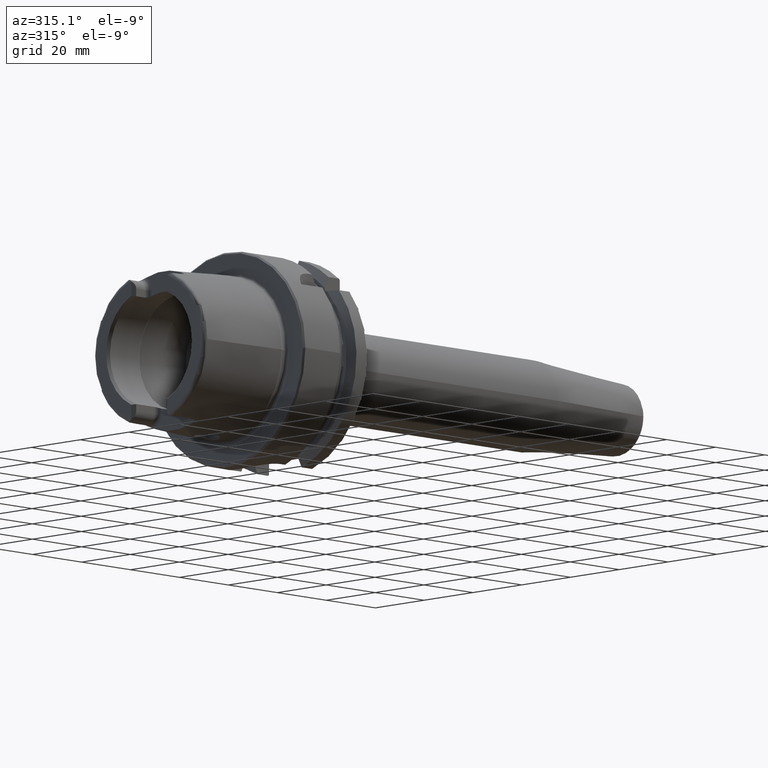
[diagram: clean part render]
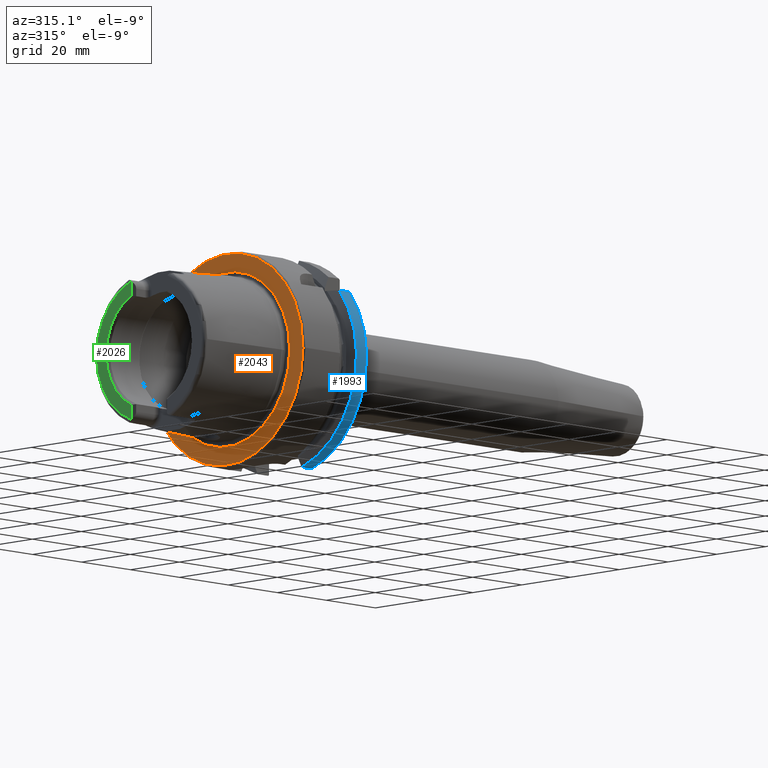
[diagram: same view with three faces highlighted in distinct colors, each labeled with its STEP entity id]
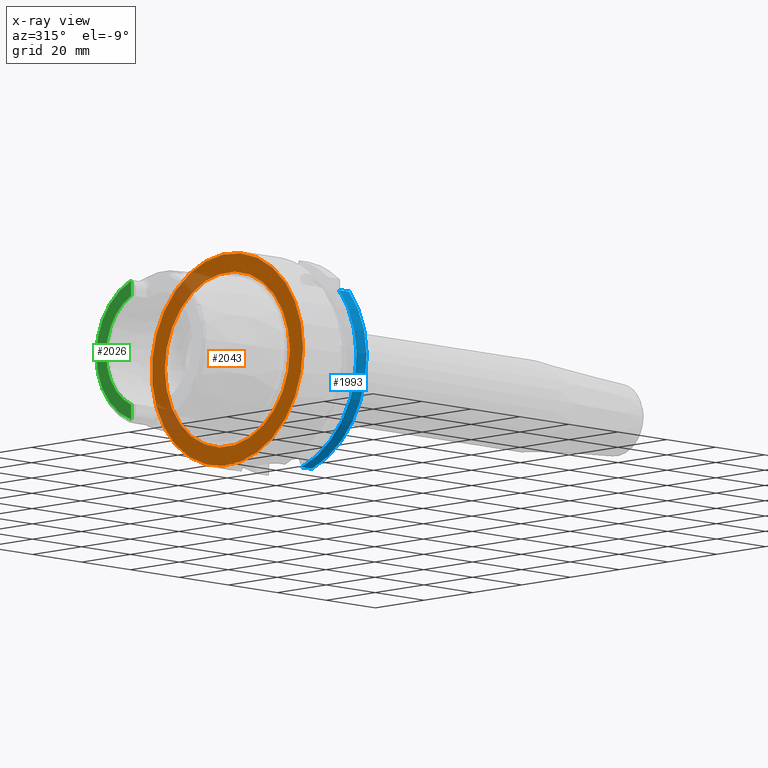
[diagram: x-ray of the same camera — body ghosted, the three highlighted faces saturated]
A machine part, auxiliary view with three faces highlighted in distinct colors.
The next image is the same camera in x-ray (body ghosted, the three faces saturated) — at least one of them is partly hidden behind the body in this view.
Their STEP definitions:

[orange] entity #2043 — the highlighted planar face has unit normal (-1, 0, 0).
#107=FACE_BOUND('',#426,.T.);
#149=PLANE('',#2307);
#299=FACE_OUTER_BOUND('',#425,.T.);
#425=EDGE_LOOP('',(#1877));
#426=EDGE_LOOP('',(#1878));
#761=CIRCLE('',#2306,25.5879092835167);
#762=CIRCLE('',#2308,31.);
#963=VERTEX_POINT('',#4351);
#964=VERTEX_POINT('',#4355);
#1269=EDGE_CURVE('',#963,#963,#761,.T.);
#1270=EDGE_CURVE('',#964,#964,#762,.T.);
#1877=ORIENTED_EDGE('',*,*,#1270,.F.);
#1878=ORIENTED_EDGE('',*,*,#1269,.T.);
#2043=ADVANCED_FACE('',(#299,#107),#149,.T.);
#2306=AXIS2_PLACEMENT_3D('',#4353,#2892,#2893);
#2307=AXIS2_PLACEMENT_3D('',#4354,#2894,#2895);
#2308=AXIS2_PLACEMENT_3D('',#4356,#2896,#2897);
#2892=DIRECTION('center_axis',(1.,0.,0.));
#2893=DIRECTION('ref_axis',(0.,0.,-1.));
#2894=DIRECTION('center_axis',(-1.,0.,0.));
#2895=DIRECTION('ref_axis',(0.,0.,1.));
#2896=DIRECTION('center_axis',(1.,0.,0.));
#2897=DIRECTION('ref_axis',(0.,0.,-1.));
#4351=CARTESIAN_POINT('',(-3.55618312575245E-16,-25.5879092835167,-3.13361512009315E-15));
#4353=CARTESIAN_POINT('Origin',(0.,0.,0.));
#4354=CARTESIAN_POINT('Origin',(0.,31.,0.));
#4355=CARTESIAN_POINT('',(-5.89805981832114E-16,-31.,-3.7964050773568E-15));
#4356=CARTESIAN_POINT('Origin',(0.,0.,0.));

[blue] entity #1993 — the highlighted cylindrical surface (partial cylindrical patch) has radius 31.5 mm, axis along (1, 0, 0).
#249=FACE_OUTER_BOUND('',#371,.T.);
#371=EDGE_LOOP('',(#1616,#1617,#1618,#1619));
#476=LINE('',#3754,#582);
#492=LINE('',#3889,#598);
#582=VECTOR('',#2546,10.);
#598=VECTOR('',#2606,10.);
#712=CIRCLE('',#2206,31.5);
#714=CIRCLE('',#2210,31.5);
#868=VERTEX_POINT('',#3749);
#869=VERTEX_POINT('',#3753);
#894=VERTEX_POINT('',#3877);
#895=VERTEX_POINT('',#3888);
#1101=EDGE_CURVE('',#869,#868,#476,.T.);
#1139=EDGE_CURVE('',#895,#894,#492,.T.);
#1184=EDGE_CURVE('',#869,#894,#712,.T.);
#1187=EDGE_CURVE('',#868,#895,#714,.T.);
#1616=ORIENTED_EDGE('',*,*,#1101,.T.);
#1617=ORIENTED_EDGE('',*,*,#1187,.T.);
#1618=ORIENTED_EDGE('',*,*,#1139,.T.);
#1619=ORIENTED_EDGE('',*,*,#1184,.F.);
#1916=CYLINDRICAL_SURFACE('',#2209,31.5);
#1993=ADVANCED_FACE('',(#249),#1916,.T.);
#2206=AXIS2_PLACEMENT_3D('',#4094,#2667,#2668);
#2209=AXIS2_PLACEMENT_3D('',#4099,#2674,#2675);
#2210=AXIS2_PLACEMENT_3D('',#4100,#2676,#2677);
#2546=DIRECTION('',(-1.,0.,0.));
#2606=DIRECTION('',(1.,0.,0.));
#2667=DIRECTION('center_axis',(1.,0.,0.));
#2668=DIRECTION('ref_axis',(0.,0.,-1.));
#2674=DIRECTION('center_axis',(1.,0.,0.));
#2675=DIRECTION('ref_axis',(0.,-0.956344671622108,-0.292241114595468));
#2676=DIRECTION('center_axis',(1.,0.,0.));
#2677=DIRECTION('ref_axis',(0.,0.,-1.));
#3749=CARTESIAN_POINT('',(21.3774990747593,-24.3361870472759,20.));
#3753=CARTESIAN_POINT('',(25.5,-24.3361870472759,20.));
#3754=CARTESIAN_POINT('',(23.4387495373797,-24.3361870472759,20.));
#3877=CARTESIAN_POINT('',(25.5,-9.,-30.1869176962472));
#3888=CARTESIAN_POINT('',(21.3774990747593,-9.,-30.1869176962472));
#3889=CARTESIAN_POINT('',(23.4387495373797,-9.,-30.1869176962472));
#4094=CARTESIAN_POINT('Origin',(25.5,0.,0.));
#4099=CARTESIAN_POINT('Origin',(23.4387495373797,0.,0.));
#4100=CARTESIAN_POINT('Origin',(21.3774990747593,0.,0.));

[green] entity #2026 — the highlighted planar face has unit normal (-1, 0, 0).
#143=PLANE('',#2270);
#282=FACE_OUTER_BOUND('',#405,.T.);
#405=EDGE_LOOP('',(#1800,#1801,#1802,#1803,#1804,#1805));
#453=LINE('',#3057,#559);
#463=LINE('',#3150,#569);
#559=VECTOR('',#2431,10.);
#569=VECTOR('',#2469,10.);
#667=CIRCLE('',#2118,2.88);
#673=CIRCLE('',#2133,2.88);
#741=CIRCLE('',#2269,17.5773502691896);
#742=CIRCLE('',#2271,21.5760400159857);
#805=VERTEX_POINT('',#3050);
#808=VERTEX_POINT('',#3055);
#811=VERTEX_POINT('',#3065);
#826=VERTEX_POINT('',#3147);
#827=VERTEX_POINT('',#3149);
#832=VERTEX_POINT('',#3168);
#1020=EDGE_CURVE('',#808,#805,#453,.T.);
#1024=EDGE_CURVE('',#811,#805,#667,.T.);
#1042=EDGE_CURVE('',#826,#827,#463,.T.);
#1049=EDGE_CURVE('',#826,#832,#673,.T.);
#1244=EDGE_CURVE('',#827,#808,#741,.T.);
#1245=EDGE_CURVE('',#811,#832,#742,.T.);
#1800=ORIENTED_EDGE('',*,*,#1020,.F.);
#1801=ORIENTED_EDGE('',*,*,#1244,.F.);
#1802=ORIENTED_EDGE('',*,*,#1042,.F.);
#1803=ORIENTED_EDGE('',*,*,#1049,.T.);
#1804=ORIENTED_EDGE('',*,*,#1245,.F.);
#1805=ORIENTED_EDGE('',*,*,#1024,.T.);
#2026=ADVANCED_FACE('',(#282),#143,.T.);
#2118=AXIS2_PLACEMENT_3D('',#3066,#2439,#2440);
#2133=AXIS2_PLACEMENT_3D('',#3181,#2478,#2479);
#2269=AXIS2_PLACEMENT_3D('',#4297,#2813,#2814);
#2270=AXIS2_PLACEMENT_3D('',#4298,#2815,#2816);
#2271=AXIS2_PLACEMENT_3D('',#4299,#2817,#2818);
#2431=DIRECTION('',(0.,0.,-1.));
#2439=DIRECTION('center_axis',(-1.,0.,0.));
#2440=DIRECTION('ref_axis',(0.,-0.453346760926793,0.891334232685576));
#2469=DIRECTION('',(0.,1.58830189502884E-16,-1.));
#2478=DIRECTION('center_axis',(-1.,0.,0.));
#2479=DIRECTION('ref_axis',(0.,1.,0.));
#2813=DIRECTION('center_axis',(-1.,0.,0.));
#2814=DIRECTION('ref_axis',(0.,-1.,0.));
#2815=DIRECTION('center_axis',(-1.,0.,0.));
#2816=DIRECTION('ref_axis',(0.,0.,1.));
#2817=DIRECTION('center_axis',(1.,0.,0.));
#2818=DIRECTION('ref_axis',(0.,0.,-1.));
#3050=CARTESIAN_POINT('',(-32.,7.27,-20.1717424229271));
#3055=CARTESIAN_POINT('',(-32.,7.27,-16.003447831195));
#3057=CARTESIAN_POINT('',(-32.,7.27,-5.5));
#3065=CARTESIAN_POINT('',(-32.,7.39118810947246,-20.2705658801576));
#3066=CARTESIAN_POINT('Origin',(-32.,9.15,-17.99));
#3147=CARTESIAN_POINT('',(-32.,7.27,20.1717424229271));
#3149=CARTESIAN_POINT('',(-32.,7.27,16.003447831195));
#3150=CARTESIAN_POINT('',(-32.,7.27,8.995));
#3168=CARTESIAN_POINT('',(-32.,7.39118810947246,20.2705658801576));
#3181=CARTESIAN_POINT('Origin',(-32.,9.15,17.99));
#4297=CARTESIAN_POINT('Origin',(-32.,0.,0.));
#4298=CARTESIAN_POINT('Origin',(-32.,21.5760400159857,0.));
#4299=CARTESIAN_POINT('Origin',(-32.,0.,0.));